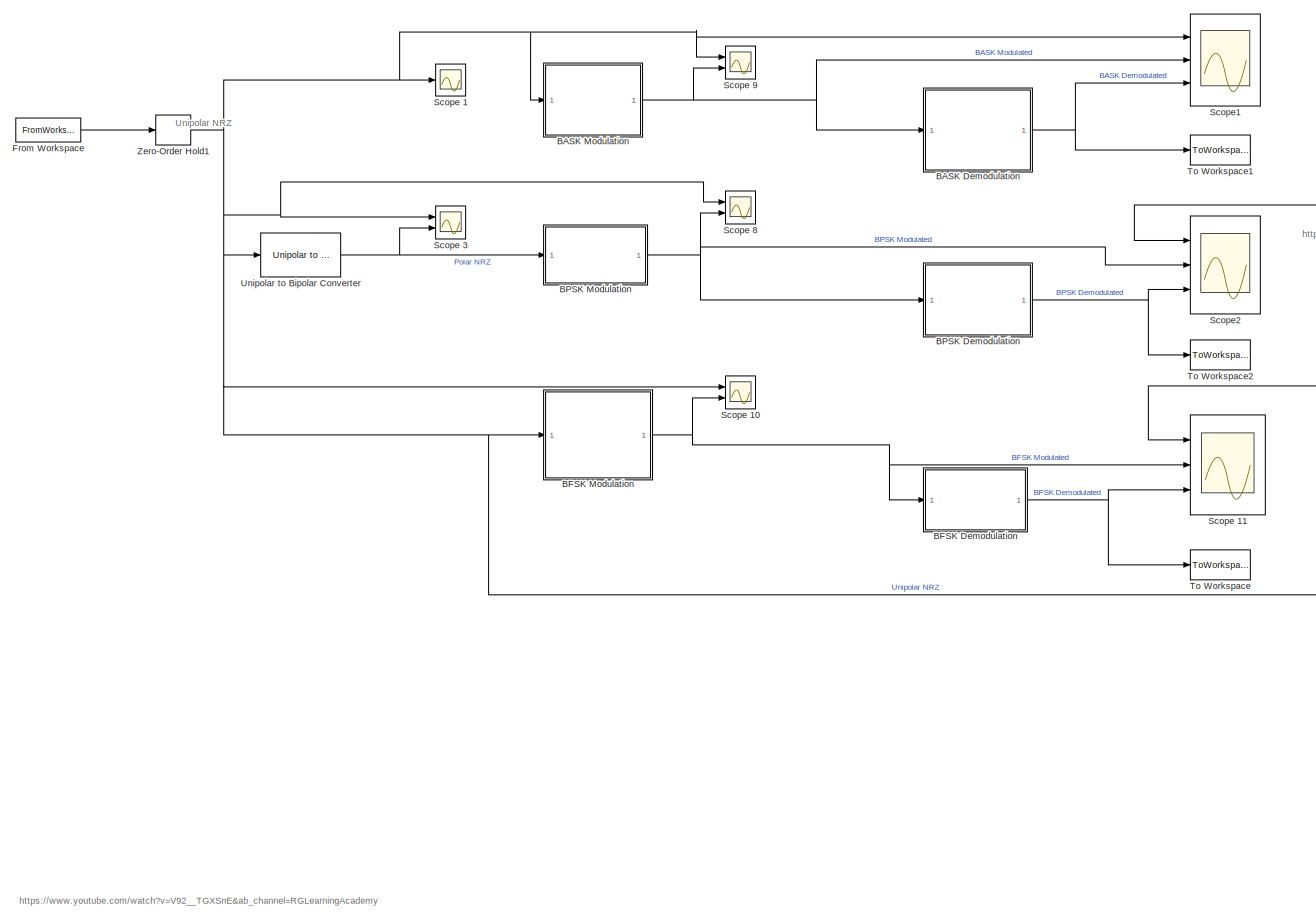
[diagram: root canvas - part 1/2, most of the canvas]
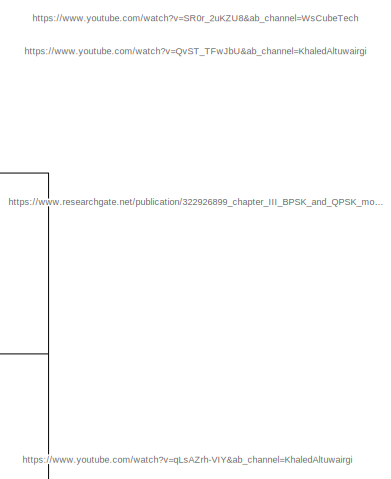
[diagram: root canvas - part 2/2, top right region]
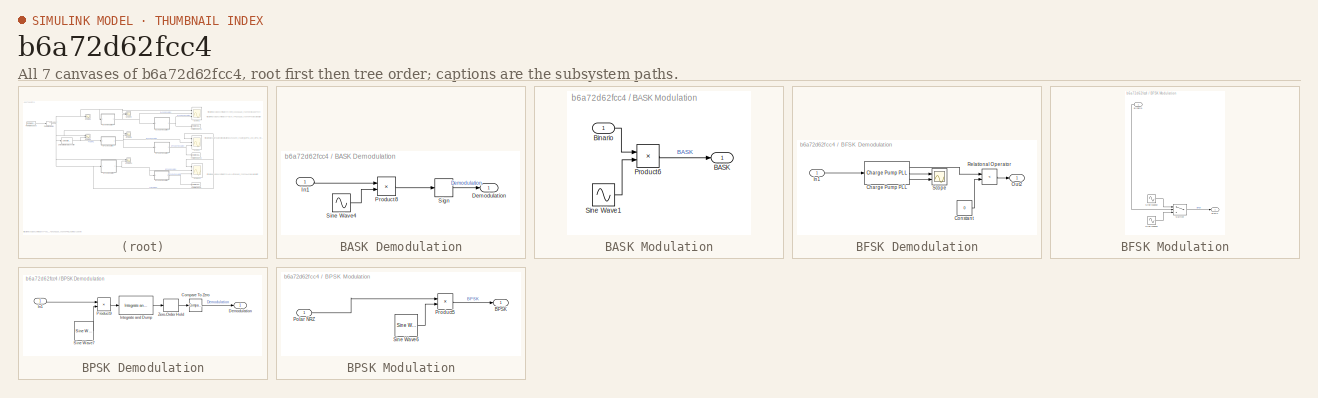
[diagram: thumbnail index - all 7 canvases of the model, root first then tree order]
MODEL slx_b6a72d62fcc4
KIND model
CONFIG AbsTol = auto
CONFIG EnableMultiTasking = off
CONFIG FixedStep = auto
CONFIG MaxStep = auto
CONFIG MinStep = auto
CONFIG RelTol = 1e-3
CONFIG SampleTimeConstraint = Unconstrained
CONFIG Solver = VariableStepAuto
CONFIG SolverName = VariableStepAuto
CONFIG StartTime = 0.0
CONFIG StopTime = 8
BLOCK [SubSystem] BASK Demodulation
  Ports = [1, 1]
  RequestExecContextInheritance = off
BLOCK [Outport] BASK Demodulation/Demodulation
  IconDisplay = Port number
BLOCK [Inport] BASK Demodulation/In1
  IconDisplay = Port number
BLOCK [Product] BASK Demodulation/Product8
  InputSameDT = off
  OutDataTypeStr = Inherit: Inherit via internal rule
  Ports = [2, 1]
  RndMeth = Floor
  SaturateOnIntegerOverflow = off
BLOCK [Signum] BASK Demodulation/Sign
BLOCK [Sin] BASK Demodulation/Sine Wave4
  Frequency = 2*pi*2
  Ports = [0, 1]
  SampleTime = 0
BLOCK [SubSystem] BASK Modulation
  Ports = [1, 1]
  RequestExecContextInheritance = off
BLOCK [Outport] BASK Modulation/BASK
  IconDisplay = Port number
BLOCK [Inport] BASK Modulation/Binario
  IconDisplay = Port number
BLOCK [Product] BASK Modulation/Product6
  InputSameDT = off
  OutDataTypeStr = Inherit: Inherit via internal rule
  Ports = [2, 1]
  RndMeth = Floor
  SaturateOnIntegerOverflow = off
BLOCK [Sin] BASK Modulation/Sine Wave1
  Frequency = 2*pi*2
  Ports = [0, 1]
  SampleTime = 0
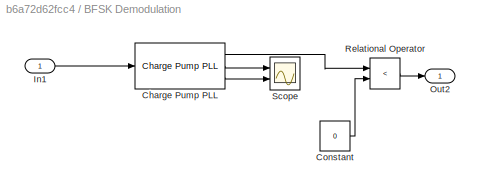
BLOCK [SubSystem] BFSK Demodulation
  Ports = [1, 1]
  RequestExecContextInheritance = off
BLOCK [Reference] BFSK Demodulation/Charge Pump PLL  REF=commsynccomp2/Charge Pump
PLL
  Ports = [1, 3]
  SourceBlock = commsynccomp2/Charge Pump\nPLL
  SourceProductBaseCode = CM
  SourceProductName = Communications Toolbox
  SourceType = Charge Pump PLL
BLOCK [Constant] BFSK Demodulation/Constant
  Value = 0
BLOCK [Inport] BFSK Demodulation/In1
  IconDisplay = Port number
BLOCK [Outport] BFSK Demodulation/Out2
  IconDisplay = Port number
BLOCK [RelationalOperator] BFSK Demodulation/Relational Operator
  InputSameDT = off
  Operator = <
  OutDataTypeStr = boolean
  Ports = [2, 1]
  RndMeth = Simplest
BLOCK [Scope] BFSK Demodulation/Scope
  Floating = off
  NumInputPorts = 2
  Ports = [2]
  ScopeSpecificationString = Simulink.scopes.TimeScopeBlockCfg('CurrentConfiguration', extmgr.ConfigurationSet(extmgr.Configuration('Core','General UI',true),extmgr.Configuration('Core','Source UI',true),extmgr.Configuration('Sources','WiredSimulink',true,'DataLoggingVariableName','ScopeData1'),extmgr.Configuration('Visuals','Time Domain',true,'SerializedDisplays',{struct('MinYLimReal','-1.25','MaxYLimReal','1.25','YLabelReal...<+1378ch>
BLOCK [SubSystem] BFSK Modulation
  Ports = [1, 1]
  RequestExecContextInheritance = off
BLOCK [Outport] BFSK Modulation/BFSK
  IconDisplay = Port number
BLOCK [Inport] BFSK Modulation/Binario
  IconDisplay = Port number
BLOCK [Sin] BFSK Modulation/Sine Wave2
  Frequency = 2*pi*4
  Ports = [0, 1]
  SampleTime = 0
BLOCK [Sin] BFSK Modulation/Sine Wave3
  Frequency = 2*pi*12
  Ports = [0, 1]
  SampleTime = 0
BLOCK [Switch] BFSK Modulation/Switch
  Criteria = u2 > Threshold
  InputSameDT = off
  SaturateOnIntegerOverflow = off
  Threshold = 0.5
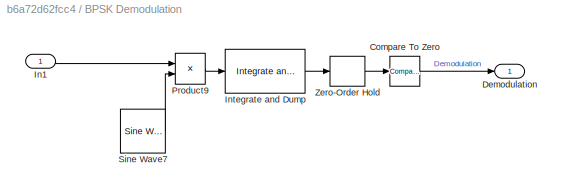
BLOCK [SubSystem] BPSK Demodulation
  Ports = [1, 1]
  RequestExecContextInheritance = off
BLOCK [Reference] BPSK Demodulation/Compare To Zero  REF=simulink/Logic and Bit
Operations/Compare
To Zero
  Ports = [1, 1]
  SourceBlock = simulink/Logic and Bit\nOperations/Compare\nTo Zero
  SourceProductBaseCode = SL
  SourceProductName = Simulink
  SourceType = Compare To Zero
BLOCK [Outport] BPSK Demodulation/Demodulation
  IconDisplay = Port number
BLOCK [Inport] BPSK Demodulation/In1
  IconDisplay = Port number
BLOCK [Reference] BPSK Demodulation/Integrate and Dump  REF=commfilt2/Integrate
and Dump
  Ports = [1, 1]
  SourceBlock = commfilt2/Integrate\nand Dump
  SourceProductBaseCode = CM
  SourceProductName = Communications Toolbox
  SourceType = Integrate and Dump
BLOCK [Product] BPSK Demodulation/Product9
  InputSameDT = off
  OutDataTypeStr = Inherit: Inherit via internal rule
  Ports = [2, 1]
  RndMeth = Floor
  SaturateOnIntegerOverflow = off
BLOCK [Reference] BPSK Demodulation/Sine Wave7  REF=dspsrcs4/Sine Wave
  Ports = [0, 1]
  SourceBlock = dspsrcs4/Sine Wave
  SourceProductBaseCode = DS
  SourceProductName = DSP System Toolbox
  SourceType = Sine Wave
BLOCK [ZeroOrderHold] BPSK Demodulation/Zero-Order Hold
  SampleTime = -1
BLOCK [SubSystem] BPSK Modulation
  Ports = [1, 1]
  RequestExecContextInheritance = off
BLOCK [Outport] BPSK Modulation/BPSK
  IconDisplay = Port number
BLOCK [Inport] BPSK Modulation/Polar NRZ
  IconDisplay = Port number
BLOCK [Product] BPSK Modulation/Product5
  InputSameDT = off
  OutDataTypeStr = Inherit: Inherit via internal rule
  Ports = [2, 1]
  RndMeth = Floor
  SaturateOnIntegerOverflow = off
BLOCK [Reference] BPSK Modulation/Sine Wave6  REF=dspsrcs4/Sine Wave
  Ports = [0, 1]
  SourceBlock = dspsrcs4/Sine Wave
  SourceProductBaseCode = DS
  SourceProductName = DSP System Toolbox
  SourceType = Sine Wave
BLOCK [FromWorkspace] From Workspace
  SampleTime = 0
  VariableName = time_value
  ZeroCross = on
BLOCK [Scope] Scope 1
  Floating = off
  NumInputPorts = 1
  Ports = [1]
  ScopeSpecificationString = Simulink.scopes.TimeScopeBlockCfg('CurrentConfiguration', extmgr.ConfigurationSet(extmgr.Configuration('Core','General UI',true,'FigureColor',[0 0 0]),extmgr.Configuration('Core','Source UI',true),extmgr.Configuration('Sources','WiredSimulink',true),extmgr.Configuration('Visuals','Time Domain',true,'SerializedDisplays',{struct('MinYLimReal','-0.125','MaxYLimReal','1.125','YLabelReal','','MinYLimMa...<+1479ch>
BLOCK [Scope] Scope 10
  Floating = off
  NumInputPorts = 2
  Ports = [2]
  ScopeSpecificationString = Simulink.scopes.TimeScopeBlockCfg('CurrentConfiguration', extmgr.ConfigurationSet(extmgr.Configuration('Core','General UI',true),extmgr.Configuration('Core','Source UI',true),extmgr.Configuration('Sources','WiredSimulink',true,'DataLoggingVariableName','ScopeData9'),extmgr.Configuration('Visuals','Time Domain',true,'SerializedDisplays',{struct('MinYLimReal','-0.125','MaxYLimReal','1.125','YLabelRe...<+2201ch>
BLOCK [Scope] Scope 11
  Floating = off
  NumInputPorts = 3
  Ports = [3]
  ScopeSpecificationString = Simulink.scopes.TimeScopeBlockCfg('CurrentConfiguration', extmgr.ConfigurationSet(extmgr.Configuration('Core','General UI',true),extmgr.Configuration('Core','Source UI',true),extmgr.Configuration('Sources','WiredSimulink',true,'DataLoggingVariableName','ScopeData10'),extmgr.Configuration('Visuals','Time Domain',true,'SerializedDisplays',{struct('MinYLimReal','-0.125','MaxYLimReal','1.125','YLabelR...<+2971ch>
BLOCK [Scope] Scope 3
  Floating = off
  NumInputPorts = 2
  Ports = [2]
  ScopeSpecificationString = Simulink.scopes.TimeScopeBlockCfg('CurrentConfiguration', extmgr.ConfigurationSet(extmgr.Configuration('Core','General UI',true),extmgr.Configuration('Core','Source UI',true),extmgr.Configuration('Sources','WiredSimulink',true,'DataLoggingVariableName','ScopeData2'),extmgr.Configuration('Visuals','Time Domain',true,'SerializedDisplays',{struct('MinYLimReal','-0.125','MaxYLimReal','1.125','YLabelRe...<+2119ch>
BLOCK [Scope] Scope 8
  Floating = off
  NumInputPorts = 2
  Ports = [2]
  ScopeSpecificationString = Simulink.scopes.TimeScopeBlockCfg('CurrentConfiguration', extmgr.ConfigurationSet(extmgr.Configuration('Core','General UI',true),extmgr.Configuration('Core','Source UI',true),extmgr.Configuration('Sources','WiredSimulink',true,'DataLoggingVariableName','ScopeData7'),extmgr.Configuration('Visuals','Time Domain',true,'SerializedDisplays',{struct('MinYLimReal','-0.125','MaxYLimReal','1.125','YLabelRe...<+2191ch>
BLOCK [Scope] Scope 9
  Floating = off
  NumInputPorts = 2
  Ports = [2]
  ScopeSpecificationString = Simulink.scopes.TimeScopeBlockCfg('CurrentConfiguration', extmgr.ConfigurationSet(extmgr.Configuration('Core','General UI',true),extmgr.Configuration('Core','Source UI',true),extmgr.Configuration('Sources','WiredSimulink',true,'DataLoggingVariableName','ScopeData8'),extmgr.Configuration('Visuals','Time Domain',true,'SerializedDisplays',{struct('MinYLimReal','-0.125','MaxYLimReal','1.125','YLabelRe...<+2118ch>
BLOCK [Scope] Scope1
  Floating = off
  NumInputPorts = 3
  Ports = [3]
  ScopeSpecificationString = Simulink.scopes.TimeScopeBlockCfg('CurrentConfiguration', extmgr.ConfigurationSet(extmgr.Configuration('Core','General UI',true),extmgr.Configuration('Core','Source UI',true),extmgr.Configuration('Sources','WiredSimulink',true,'DataLoggingVariableName','ScopeData1'),extmgr.Configuration('Visuals','Time Domain',true,'SerializedDisplays',{struct('MinYLimReal','-0.125','MaxYLimReal','1.125','YLabelRe...<+2979ch>
BLOCK [Scope] Scope2
  Floating = off
  NumInputPorts = 3
  Ports = [3]
  ScopeSpecificationString = Simulink.scopes.TimeScopeBlockCfg('CurrentConfiguration', extmgr.ConfigurationSet(extmgr.Configuration('Core','General UI',true),extmgr.Configuration('Core','Source UI',true),extmgr.Configuration('Sources','WiredSimulink',true,'DataLoggingVariableName','ScopeData2'),extmgr.Configuration('Visuals','Time Domain',true,'SerializedDisplays',{struct('MinYLimReal','-0.125','MaxYLimReal','1.125','YLabelRe...<+2998ch>
BLOCK [ToWorkspace] To Workspace
  FixptAsFi = on
  MaxDataPoints = inf
  Ports = [1]
  SampleTime = -1
  Save2DSignal = 3-D array (concatenate along third dimension)
  SaveFormat = Timeseries
  VariableName = databits_simulink_BFSK
BLOCK [ToWorkspace] To Workspace1
  FixptAsFi = on
  MaxDataPoints = inf
  Ports = [1]
  SampleTime = -1
  Save2DSignal = 3-D array (concatenate along third dimension)
  SaveFormat = Timeseries
  VariableName = databits_simulink_BASK
BLOCK [ToWorkspace] To Workspace2
  FixptAsFi = on
  MaxDataPoints = inf
  Ports = [1]
  SampleTime = -1
  Save2DSignal = 3-D array (concatenate along third dimension)
  SaveFormat = Timeseries
  VariableName = databits_simulink_BPSK
BLOCK [Reference] Unipolar to Bipolar Converter  REF=commutil2/Unipolar to
Bipolar
Converter
  Ports = [1, 1]
  SourceBlock = commutil2/Unipolar to\nBipolar\nConverter
  SourceProductBaseCode = CM
  SourceProductName = Communications Toolbox
  SourceType = Unipolar to Bipolar Converter
BLOCK [ZeroOrderHold] Zero-Order Hold1
  SampleTime = -1
ANNOTATION (root): Unipolar NRZ
ANNOTATION (root): https://www.researchgate.net/publication/322926899_chapter_III_BPSK_and_QPSK_modulation_and_demodulation_with_Simulink
ANNOTATION (root): https://www.youtube.com/watch?v=QvST_TFwJbU&ab_channel=KhaledAltuwairgi
ANNOTATION (root): https://www.youtube.com/watch?v=SR0r_2uKZU8&ab_channel=WsCubeTech
ANNOTATION (root): https://www.youtube.com/watch?v=V92__TGXSnE&ab_channel=RGLearningAcademy
ANNOTATION (root): https://www.youtube.com/watch?v=qLsAZrh-VIY&ab_channel=KhaledAltuwairgi
LINE BASK Demodulation/In1:1 -> BASK Demodulation/Product8:1
LINE BASK Demodulation/Product8:1 -> BASK Demodulation/Sign:1
LINE BASK Demodulation/Sign:1 -> BASK Demodulation/Demodulation:1
LINE BASK Demodulation/Sine Wave4:1 -> BASK Demodulation/Product8:2
NET BASK Demodulation:1 -> Scope1:3, To Workspace1:1
LINE BASK Modulation/Binario:1 -> BASK Modulation/Product6:1
LINE BASK Modulation/Product6:1 -> BASK Modulation/BASK:1
LINE BASK Modulation/Sine Wave1:1 -> BASK Modulation/Product6:2
NET BASK Modulation:1 -> BASK Demodulation:1, Scope 9:2, Scope1:2
LINE BFSK Demodulation/Charge Pump PLL:1 -> BFSK Demodulation/Relational Operator:1
LINE BFSK Demodulation/Charge Pump PLL:2 -> BFSK Demodulation/Scope:1
LINE BFSK Demodulation/Charge Pump PLL:3 -> BFSK Demodulation/Scope:2
LINE BFSK Demodulation/Constant:1 -> BFSK Demodulation/Relational Operator:2
LINE BFSK Demodulation/In1:1 -> BFSK Demodulation/Charge Pump PLL:1
LINE BFSK Demodulation/Relational Operator:1 -> BFSK Demodulation/Out2:1
NET BFSK Demodulation:1 -> Scope 11:3, To Workspace:1
LINE BFSK Modulation/Binario:1 -> BFSK Modulation/Switch:2
LINE BFSK Modulation/Sine Wave2:1 -> BFSK Modulation/Switch:1
LINE BFSK Modulation/Sine Wave3:1 -> BFSK Modulation/Switch:3
LINE BFSK Modulation/Switch:1 -> BFSK Modulation/BFSK:1
NET BFSK Modulation:1 -> BFSK Demodulation:1, Scope 10:2, Scope 11:2
LINE BPSK Demodulation/Compare To Zero:1 -> BPSK Demodulation/Demodulation:1
LINE BPSK Demodulation/In1:1 -> BPSK Demodulation/Product9:1
LINE BPSK Demodulation/Integrate and Dump:1 -> BPSK Demodulation/Zero-Order Hold:1
LINE BPSK Demodulation/Product9:1 -> BPSK Demodulation/Integrate and Dump:1
LINE BPSK Demodulation/Sine Wave7:1 -> BPSK Demodulation/Product9:2
LINE BPSK Demodulation/Zero-Order Hold:1 -> BPSK Demodulation/Compare To Zero:1
NET BPSK Demodulation:1 -> Scope2:3, To Workspace2:1
LINE BPSK Modulation/Polar NRZ:1 -> BPSK Modulation/Product5:1
LINE BPSK Modulation/Product5:1 -> BPSK Modulation/BPSK:1
LINE BPSK Modulation/Sine Wave6:1 -> BPSK Modulation/Product5:2
NET BPSK Modulation:1 -> BPSK Demodulation:1, Scope 8:2, Scope2:2
LINE From Workspace:1 -> Zero-Order Hold1:1
NET Unipolar to Bipolar Converter:1 -> BPSK Modulation:1, Scope 3:2
NET Zero-Order Hold1:1 -> BASK Modulation:1, BFSK Modulation:1, Scope 10:1, Scope 11:1, Scope 1:1, Scope 3:1, Scope 8:1, Scope 9:1, Scope1:1, Scope2:1, Unipolar to Bipolar Converter:1
note: NET lines group one-source signal fan-out (src -> all destinations, sorted); 1:1 wires keep LINE
